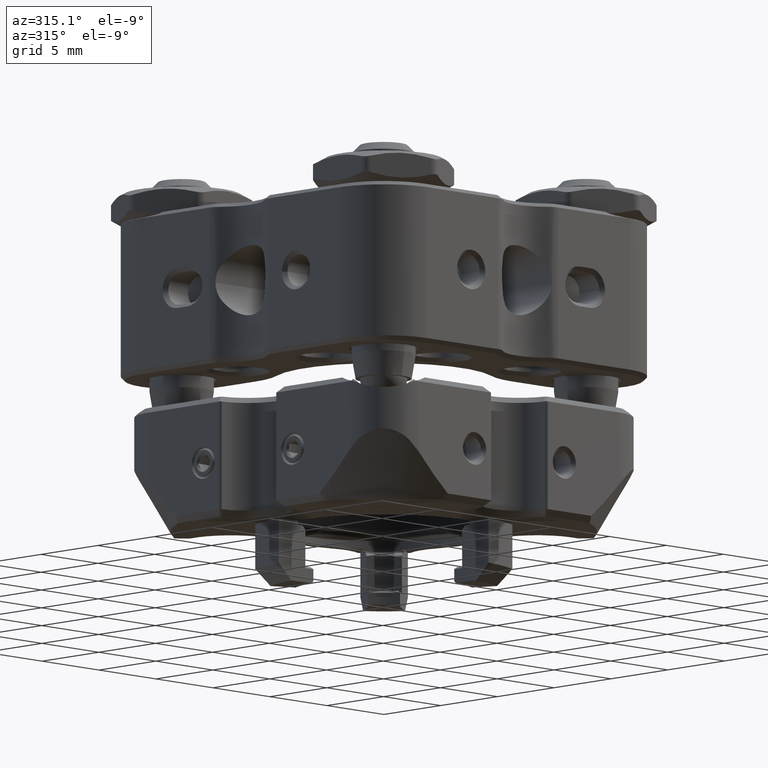
[diagram: clean part render]
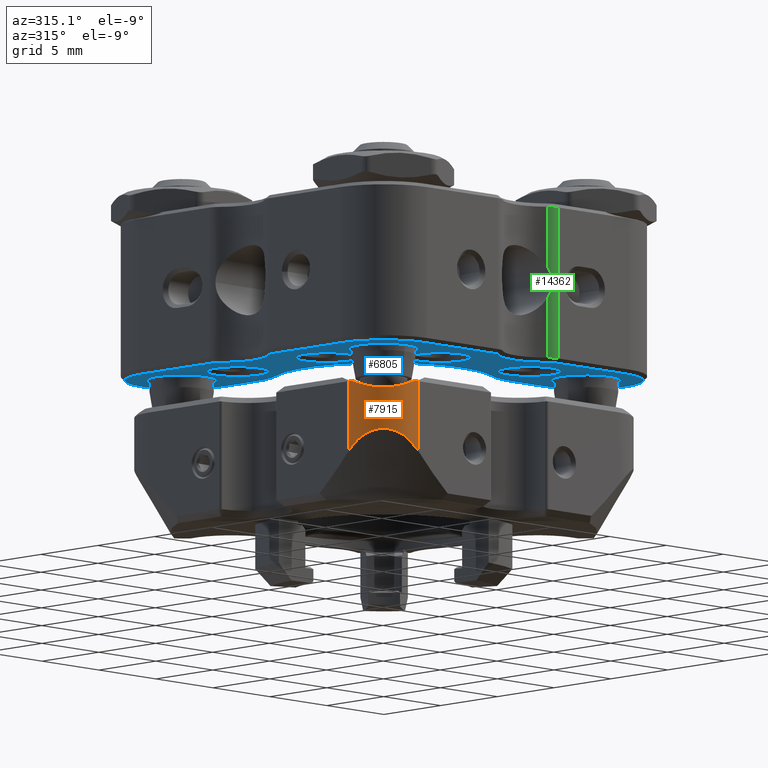
[diagram: same view with three faces highlighted in distinct colors, each labeled with its STEP entity id]
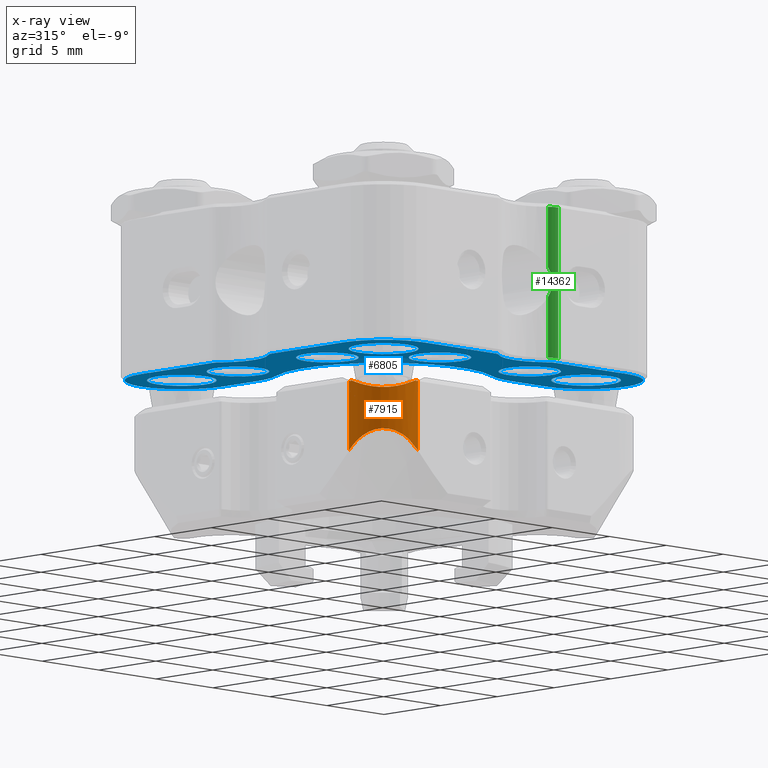
[diagram: x-ray of the same camera — body ghosted, the three highlighted faces saturated]
A machine part, auxiliary view with three faces highlighted in distinct colors.
The next image is the same camera in x-ray (body ghosted, the three faces saturated) — at least one of them is partly hidden behind the body in this view.
Their STEP definitions:

[orange] entity #7915 — the highlighted cylindrical surface (partial cylindrical patch) has radius 3.048 mm, axis along (0, -0, 1).
#81 = CARTESIAN_POINT ( 'NONE',  ( 8.099828173317630942, -9.995487385094644850, -5.026209211777071140 ) ) ;
#249 = CARTESIAN_POINT ( 'NONE',  ( 7.968549424003965598, -10.04401466382113561, -1.668764389073038146 ) ) ;
#293 = CYLINDRICAL_SURFACE ( 'NONE', #4287, 3.048000000000001375 ) ;
#489 = CARTESIAN_POINT ( 'NONE',  ( 10.15999999999999659, -7.435672145630305430, -1.248279250892957659 ) ) ;
#512 = CARTESIAN_POINT ( 'NONE',  ( 10.16000000000000192, -7.111999999999998323, 5.676900000000000723 ) ) ;
#555 = CARTESIAN_POINT ( 'NONE',  ( 8.911942566122489140, -9.574419869628968627, -2.140499340308680054 ) ) ;
#742 = CARTESIAN_POINT ( 'NONE',  ( 8.372875855493898456, -9.901946419905423014, -4.932668246587541994 ) ) ;
#939 = CARTESIAN_POINT ( 'NONE',  ( 10.16000000000000192, -7.111999999999998323, -5.295900000000001384 ) ) ;
#1297 = EDGE_CURVE ( 'NONE', #5315, #8537, #10091, .T. ) ;
#1472 = CARTESIAN_POINT ( 'NONE',  ( 7.785456005126948575, -10.08986922601767411, -1.530610798859725286 ) ) ;
#1955 = LINE ( 'NONE', #9432, #2853 ) ;
#2034 = CARTESIAN_POINT ( 'NONE',  ( 9.713356308748773316, -8.729075870306465035, -4.836075982068008372 ) ) ;
#2153 = CARTESIAN_POINT ( 'NONE',  ( 7.282881136124938593, -10.15640637669801727, -5.299493623301977152 ) ) ;
#2199 = CARTESIAN_POINT ( 'NONE',  ( 9.344364754940762907, -9.209268846927528784, -4.770404590740772832 ) ) ;
#2582 = CARTESIAN_POINT ( 'NONE',  ( 7.112000000000000099, -7.111999999999998323, 5.676900000000000723 ) ) ;
#2690 = CARTESIAN_POINT ( 'NONE',  ( 7.272232941495139436, -10.16000000000000192, -1.079202160661693721 ) ) ;
#2748 = DIRECTION ( 'NONE',  ( -0.000000000000000000, -0.000000000000000000, -1.000000000000000000 ) ) ;
#2825 = ORIENTED_EDGE ( 'NONE', *, *, #9987, .F. ) ;
#2853 = VECTOR ( 'NONE', #6848, 1000.000000000000000 ) ;
#2896 = CARTESIAN_POINT ( 'NONE',  ( 10.16000000000000192, -7.197478354937953959, -5.295900000000001384 ) ) ;
#2933 = CARTESIAN_POINT ( 'NONE',  ( 9.631546900848952930, -8.830906409094595233, -2.116894669760313707 ) ) ;
#3020 = CARTESIAN_POINT ( 'NONE',  ( 9.090885641512258530, -9.433059342950926407, -2.177586437462521118 ) ) ;
#3132 = CARTESIAN_POINT ( 'NONE',  ( 7.857539165240611467, -10.07849101101681910, -5.109212837698960286 ) ) ;
#3260 = CARTESIAN_POINT ( 'NONE',  ( 9.564978598131064658, -8.924829885912137328, -2.143901567788132123 ) ) ;
#3275 = CARTESIAN_POINT ( 'NONE',  ( 9.856985913071481420, -8.468391468657724630, -4.904513844321582106 ) ) ;
#3448 = EDGE_CURVE ( 'NONE', #14288, #5315, #1955, .T. ) ;
#3564 = VERTEX_POINT ( 'NONE', #81 ) ;
#3901 = ORIENTED_EDGE ( 'NONE', *, *, #1297, .T. ) ;
#4212 = CARTESIAN_POINT ( 'NONE',  ( 7.112000000000000099, -10.15999999999999837, -5.295899999999997831 ) ) ;
#4287 = AXIS2_PLACEMENT_3D ( 'NONE', #2582, #2748, #15005 ) ;
#4360 = CARTESIAN_POINT ( 'NONE',  ( 7.368057329692457635, -10.14922548453531270, -5.306674515464682607 ) ) ;
#4399 = CARTESIAN_POINT ( 'NONE',  ( 8.250671879450207413, -9.941090150049243235, -1.848059543088286460 ) ) ;
#4468 = CARTESIAN_POINT ( 'NONE',  ( 8.631375543011335694, -9.756646618841351426, -2.043230124569045625 ) ) ;
#4663 = B_SPLINE_CURVE_WITH_KNOTS ( 'NONE', 3,
 ( #4360, #9136, #3132, #5507 ),
 .UNSPECIFIED., .F., .F.,
 ( 4, 4 ),
 ( 0.0002761886612296812174, 0.001074490666728160088 ),
 .UNSPECIFIED. ) ;
#4983 = B_SPLINE_CURVE_WITH_KNOTS ( 'NONE', 3,
 ( #5154, #2690, #12604, #1472, #249, #4399, #14056, #11914, #4468, #11757, #555, #3020, #9097, #7973, #14213, #3260, #2933, #14369, #9178, #14141, #489, #12926 ),
 .UNSPECIFIED., .F., .F.,
 ( 4, 2, 2, 2, 2, 2, 2, 2, 2, 2, 4 ),
 ( 0.0003023768153346292182, 0.0009893881956517017705, 0.001676399575968774269, 0.002019905266127308349, 0.002363410956285842864, 0.002706916646444377378, 0.003050422336602911458, 0.003393928026761446407, 0.003737433716919980921, 0.004424445097237049082, 0.005798467857871190609 ),
 .UNSPECIFIED. ) ;
#5154 = CARTESIAN_POINT ( 'NONE',  ( 7.111999999999999211, -10.16000000000000014, -0.9134419340957943279 ) ) ;
#5315 = VERTEX_POINT ( 'NONE', #4212 ) ;
#5507 = CARTESIAN_POINT ( 'NONE',  ( 8.099828173317630942, -9.995487385094644850, -5.026209211777071140 ) ) ;
#5639 = EDGE_CURVE ( 'NONE', #8537, #3564, #4663, .T. ) ;
#5667 = EDGE_CURVE ( 'NONE', #14909, #9382, #5742, .T. ) ;
#5742 =( BOUNDED_CURVE ( )  B_SPLINE_CURVE ( 3, ( #14020, #6713, #2896, #6637 ),
 .UNSPECIFIED., .F., .T. ) 
 B_SPLINE_CURVE_WITH_KNOTS ( ( 4, 4 ),
 ( 3.057485214862957879, 3.141592653589793116 ),
 .UNSPECIFIED. ) 
 CURVE ( )  GEOMETRIC_REPRESENTATION_ITEM ( )  RATIONAL_B_SPLINE_CURVE ( ( 1.000000000000000000, 0.9994105817698464289, 0.9994105817698464289, 1.000000000000000000 ) ) 
 REPRESENTATION_ITEM ( '' )  );
#5758 = ORIENTED_EDGE ( 'NONE', *, *, #13574, .F. ) ;
#5836 = CARTESIAN_POINT ( 'NONE',  ( 7.112000000000000099, -10.15999999999999837, -5.295899999999997831 ) ) ;
#5915 = CARTESIAN_POINT ( 'NONE',  ( 7.197478354937983269, -10.15999999999999837, -5.295899999999996943 ) ) ;
#6637 = CARTESIAN_POINT ( 'NONE',  ( 10.16000000000000192, -7.111999999999998323, -5.295900000000001384 ) ) ;
#6705 = LINE ( 'NONE', #512, #7348 ) ;
#6713 = CARTESIAN_POINT ( 'NONE',  ( 10.15640637669802082, -7.282881136124884414, -5.299493623301981593 ) ) ;
#6848 = DIRECTION ( 'NONE',  ( -0.000000000000000000, -0.000000000000000000, -1.000000000000000000 ) ) ;
#7168 = CARTESIAN_POINT ( 'NONE',  ( 10.12560571199307802, -7.648223397152431602, -5.190218101284745700 ) ) ;
#7348 = VECTOR ( 'NONE', #15064, 1000.000000000000000 ) ;
#7579 = VERTEX_POINT ( 'NONE', #13662 ) ;
#7915 = ADVANCED_FACE ( 'NONE', ( #13302 ), #293, .T. ) ;
#7973 = CARTESIAN_POINT ( 'NONE',  ( 9.344698759503971885, -9.190237689979880997, -2.188417042059593420 ) ) ;
#8225 = CARTESIAN_POINT ( 'NONE',  ( 10.14922548453532336, -7.368057329692375923, -5.306674515464679054 ) ) ;
#8375 = CARTESIAN_POINT ( 'NONE',  ( 8.099828173317630942, -9.995487385094644850, -5.026209211777071140 ) ) ;
#8537 = VERTEX_POINT ( 'NONE', #9121 ) ;
#8697 = ORIENTED_EDGE ( 'NONE', *, *, #12934, .T. ) ;
#9097 = CARTESIAN_POINT ( 'NONE',  ( 9.178671611525626162, -9.355409034674140756, -2.187573424587574866 ) ) ;
#9121 = CARTESIAN_POINT ( 'NONE',  ( 7.368057329692457635, -10.14922548453531270, -5.306674515464682607 ) ) ;
#9136 = CARTESIAN_POINT ( 'NONE',  ( 7.614059716505599873, -10.12848592647942425, -5.204418892192074431 ) ) ;
#9178 = CARTESIAN_POINT ( 'NONE',  ( 9.902615250178556039, -8.354080883521392664, -1.913000516845026810 ) ) ;
#9382 = VERTEX_POINT ( 'NONE', #939 ) ;
#9432 = CARTESIAN_POINT ( 'NONE',  ( 7.112000000000000099, -10.15999999999999837, 5.676900000000000723 ) ) ;
#9512 = CARTESIAN_POINT ( 'NONE',  ( 8.635595039523620287, -9.769036561963192256, -4.858012989388826419 ) ) ;
#9789 = CARTESIAN_POINT ( 'NONE',  ( 7.111999999999999211, -10.16000000000000014, -0.9134419340957943279 ) ) ;
#9849 = CARTESIAN_POINT ( 'NONE',  ( 10.14922548453532336, -7.368057329692375923, -5.306674515464679054 ) ) ;
#9912 = ORIENTED_EDGE ( 'NONE', *, *, #5667, .T. ) ;
#9987 = EDGE_CURVE ( 'NONE', #7579, #9382, #6705, .T. ) ;
#10091 =( BOUNDED_CURVE ( )  B_SPLINE_CURVE ( 3, ( #5836, #5915, #2153, #13452 ),
 .UNSPECIFIED., .F., .T. ) 
 B_SPLINE_CURVE_WITH_KNOTS ( ( 4, 4 ),
 ( 3.141592653589793116, 3.225700092316654555 ),
 .UNSPECIFIED. ) 
 CURVE ( )  GEOMETRIC_REPRESENTATION_ITEM ( )  RATIONAL_B_SPLINE_CURVE ( ( 1.000000000000000000, 0.9994105817698459848, 0.9994105817698459848, 1.000000000000000000 ) ) 
 REPRESENTATION_ITEM ( '' )  );
#10799 = CARTESIAN_POINT ( 'NONE',  ( 9.126576196563393140, -9.419090783716654869, -4.775387663265036942 ) ) ;
#11757 = CARTESIAN_POINT ( 'NONE',  ( 8.819961950314375798, -9.638959389370612030, -2.113404242367718400 ) ) ;
#11914 = CARTESIAN_POINT ( 'NONE',  ( 8.535041885759151015, -9.809477128186500750, -2.000102378579530882 ) ) ;
#12604 = CARTESIAN_POINT ( 'NONE',  ( 7.438401798330821713, -10.14757407818538582, -1.236641613914369220 ) ) ;
#12906 = B_SPLINE_CURVE_WITH_KNOTS ( 'NONE', 3,
 ( #8375, #742, #9512, #10799, #2199, #2034, #3275, #13336, #7168, #8225 ),
 .UNSPECIFIED., .F., .F.,
 ( 4, 2, 2, 2, 4 ),
 ( 0.001074490666728160088, 0.001974137390317369078, 0.002873784113906577634, 0.003773430837495786623, 0.004673077561084995613 ),
 .UNSPECIFIED. ) ;
#12926 = CARTESIAN_POINT ( 'NONE',  ( 10.16000000000000192, -7.112000000000000099, -0.9134419340957991018 ) ) ;
#12934 = EDGE_CURVE ( 'NONE', #3564, #14909, #12906, .T. ) ;
#12955 = EDGE_LOOP ( 'NONE', ( #13548, #3901, #14583, #8697, #9912, #2825, #5758 ) ) ;
#13302 = FACE_OUTER_BOUND ( 'NONE', #12955, .T. ) ;
#13336 = CARTESIAN_POINT ( 'NONE',  ( 10.06383579511595983, -7.925271736801705380, -5.082805460722910063 ) ) ;
#13452 = CARTESIAN_POINT ( 'NONE',  ( 7.368057329692457635, -10.14922548453531270, -5.306674515464682607 ) ) ;
#13548 = ORIENTED_EDGE ( 'NONE', *, *, #3448, .T. ) ;
#13574 = EDGE_CURVE ( 'NONE', #14288, #7579, #4983, .T. ) ;
#13662 = CARTESIAN_POINT ( 'NONE',  ( 10.16000000000000192, -7.112000000000000099, -0.9134419340957991018 ) ) ;
#14020 = CARTESIAN_POINT ( 'NONE',  ( 10.14922548453532336, -7.368057329692375923, -5.306674515464679054 ) ) ;
#14056 = CARTESIAN_POINT ( 'NONE',  ( 8.345152454647228879, -9.901402460978289355, -1.902681227144757958 ) ) ;
#14141 = CARTESIAN_POINT ( 'NONE',  ( 10.11016825575627465, -7.791167647292671639, -1.557530402810652026 ) ) ;
#14213 = CARTESIAN_POINT ( 'NONE',  ( 9.421818082899594771, -9.104033288390366963, -2.179465825792783473 ) ) ;
#14288 = VERTEX_POINT ( 'NONE', #9789 ) ;
#14369 = CARTESIAN_POINT ( 'NONE',  ( 9.809965199756026877, -8.547651453562327362, -2.013145519260808314 ) ) ;
#14583 = ORIENTED_EDGE ( 'NONE', *, *, #5639, .T. ) ;
#14909 = VERTEX_POINT ( 'NONE', #9849 ) ;
#15005 = DIRECTION ( 'NONE',  ( -1.000000000000000000, 0.000000000000000000, 0.000000000000000000 ) ) ;
#15064 = DIRECTION ( 'NONE',  ( -0.000000000000000000, -0.000000000000000000, -1.000000000000000000 ) ) ;

[blue] entity #6805 — the highlighted planar face has unit normal (-0, 0, 1).
#12 = ORIENTED_EDGE ( 'NONE', *, *, #4058, .T. ) ;
#127 = DIRECTION ( 'NONE',  ( -1.000000000000000000, -0.000000000000000000, -0.000000000000000000 ) ) ;
#137 = DIRECTION ( 'NONE',  ( 0.000000000000000000, 0.000000000000000000, -1.000000000000000000 ) ) ;
#192 = AXIS2_PLACEMENT_3D ( 'NONE', #1333, #127, #5106 ) ;
#217 = FACE_BOUND ( 'NONE', #10407, .T. ) ;
#303 = ORIENTED_EDGE ( 'NONE', *, *, #2294, .T. ) ;
#318 = DIRECTION ( 'NONE',  ( 0.000000000000000000, 0.000000000000000000, -1.000000000000000000 ) ) ;
#374 = VERTEX_POINT ( 'NONE', #14173 ) ;
#396 = CARTESIAN_POINT ( 'NONE',  ( -5.000000000000000000, 3.851859888774471706E-31, -14.69999999999999929 ) ) ;
#408 = ORIENTED_EDGE ( 'NONE', *, *, #14187, .T. ) ;
#412 = EDGE_CURVE ( 'NONE', #11255, #11878, #15673, .T. ) ;
#426 = CIRCLE ( 'NONE', #1204, 4.749999999999995559 ) ;
#501 = VERTEX_POINT ( 'NONE', #12233 ) ;
#565 = EDGE_CURVE ( 'NONE', #8535, #8831, #2982, .T. ) ;
#592 = VERTEX_POINT ( 'NONE', #3507 ) ;
#598 = EDGE_CURVE ( 'NONE', #6458, #501, #9199, .T. ) ;
#607 = EDGE_CURVE ( 'NONE', #6715, #3165, #12026, .T. ) ;
#624 = DIRECTION ( 'NONE',  ( 0.000000000000000000, 0.000000000000000000, -1.000000000000000000 ) ) ;
#645 = DIRECTION ( 'NONE',  ( 0.000000000000000000, 0.000000000000000000, -1.000000000000000000 ) ) ;
#664 = EDGE_CURVE ( 'NONE', #9582, #374, #15423, .T. ) ;
#846 = DIRECTION ( 'NONE',  ( 0.000000000000000000, 0.000000000000000000, -1.000000000000000000 ) ) ;
#905 = VERTEX_POINT ( 'NONE', #13630 ) ;
#1186 = DIRECTION ( 'NONE',  ( -1.000000000000000000, -0.000000000000000000, -0.000000000000000000 ) ) ;
#1204 = AXIS2_PLACEMENT_3D ( 'NONE', #3499, #15823, #11919 ) ;
#1256 = CARTESIAN_POINT ( 'NONE',  ( -5.000000000000000000, -12.44999999999999929, 0.000000000000000000 ) ) ;
#1295 = AXIS2_PLACEMENT_3D ( 'NONE', #12863, #5246, #14159 ) ;
#1307 = VECTOR ( 'NONE', #7528, 1000.000000000000000 ) ;
#1333 = CARTESIAN_POINT ( 'NONE',  ( -5.000000000000000000, -8.890000000000002345, -8.889999999999998792 ) ) ;
#1348 = ORIENTED_EDGE ( 'NONE', *, *, #12528, .T. ) ;
#1432 = EDGE_CURVE ( 'NONE', #10679, #8616, #15826, .T. ) ;
#1447 = CIRCLE ( 'NONE', #2479, 2.175000000000003375 ) ;
#1493 = EDGE_CURVE ( 'NONE', #6563, #11728, #2819, .T. ) ;
#1601 = DIRECTION ( 'NONE',  ( 0.000000000000000000, 0.000000000000000000, -1.000000000000000000 ) ) ;
#1700 = ORIENTED_EDGE ( 'NONE', *, *, #3268, .T. ) ;
#1739 = VERTEX_POINT ( 'NONE', #9530 ) ;
#1820 = EDGE_CURVE ( 'NONE', #5460, #6715, #4665, .T. ) ;
#1855 = ORIENTED_EDGE ( 'NONE', *, *, #1432, .T. ) ;
#1903 = VERTEX_POINT ( 'NONE', #7260 ) ;
#1936 = ORIENTED_EDGE ( 'NONE', *, *, #12843, .T. ) ;
#1946 = EDGE_CURVE ( 'NONE', #11878, #11255, #15663, .T. ) ;
#2193 = AXIS2_PLACEMENT_3D ( 'NONE', #6532, #2553, #11311 ) ;
#2205 = VERTEX_POINT ( 'NONE', #9662 ) ;
#2294 = EDGE_CURVE ( 'NONE', #11728, #6507, #7304, .T. ) ;
#2362 = CARTESIAN_POINT ( 'NONE',  ( -5.000000000000000000, -10.08000000000000362, 5.880688735173794868 ) ) ;
#2381 = CIRCLE ( 'NONE', #3421, 3.559999999999997389 ) ;
#2445 = CARTESIAN_POINT ( 'NONE',  ( -5.000000000000000000, -8.890000000000002345, -11.06499999999999062 ) ) ;
#2479 = AXIS2_PLACEMENT_3D ( 'NONE', #4438, #15399, #5439 ) ;
#2553 = DIRECTION ( 'NONE',  ( -1.000000000000000000, -0.000000000000000000, -0.000000000000000000 ) ) ;
#2629 = EDGE_LOOP ( 'NONE', ( #5330, #3478 ) ) ;
#2643 = ORIENTED_EDGE ( 'NONE', *, *, #15265, .T. ) ;
#2656 = FACE_BOUND ( 'NONE', #5206, .T. ) ;
#2679 = CARTESIAN_POINT ( 'NONE',  ( -5.000000000000000000, -8.890000000000004121, 6.715000000000002522 ) ) ;
#2739 = EDGE_CURVE ( 'NONE', #9742, #9844, #9725, .T. ) ;
#2819 = LINE ( 'NONE', #1256, #1307 ) ;
#2840 = CARTESIAN_POINT ( 'NONE',  ( -5.000000000000000000, -14.69999999999999929, -3.264055692397959677E-15 ) ) ;
#2982 = CIRCLE ( 'NONE', #6088, 1.949999999999996847 ) ;
#3055 = ORIENTED_EDGE ( 'NONE', *, *, #8056, .T. ) ;
#3123 = VECTOR ( 'NONE', #7634, 1000.000000000000000 ) ;
#3165 = VERTEX_POINT ( 'NONE', #4256 ) ;
#3191 = DIRECTION ( 'NONE',  ( 0.000000000000000000, 0.000000000000000000, -1.000000000000000000 ) ) ;
#3244 = CARTESIAN_POINT ( 'NONE',  ( -5.000000000000000000, -12.44999999999999929, 2.645751311064589828 ) ) ;
#3268 = EDGE_CURVE ( 'NONE', #905, #11844, #7798, .T. ) ;
#3289 = CARTESIAN_POINT ( 'NONE',  ( -5.000000000000000000, -8.889999999999998792, 5.884999999999995346 ) ) ;
#3334 = CARTESIAN_POINT ( 'NONE',  ( -5.000000000000000000, 3.851859888774471706E-31, -11.44999999999999574 ) ) ;
#3375 = CIRCLE ( 'NONE', #5478, 2.174999999999992717 ) ;
#3421 = AXIS2_PLACEMENT_3D ( 'NONE', #14304, #7012, #3191 ) ;
#3478 = ORIENTED_EDGE ( 'NONE', *, *, #13053, .T. ) ;
#3499 = CARTESIAN_POINT ( 'NONE',  ( -5.000000000000000000, 5.880688735173794868, -10.08000000000000007 ) ) ;
#3507 = CARTESIAN_POINT ( 'NONE',  ( -5.000000000000000000, -8.890000000000002345, -12.44999999999999574 ) ) ;
#3525 = CIRCLE ( 'NONE', #4560, 6.920000000000003482 ) ;
#3545 = VERTEX_POINT ( 'NONE', #12343 ) ;
#3698 = ORIENTED_EDGE ( 'NONE', *, *, #664, .T. ) ;
#3744 = EDGE_LOOP ( 'NONE', ( #10104, #14289 ) ) ;
#3746 = DIRECTION ( 'NONE',  ( -1.000000000000000000, -0.000000000000000000, -0.000000000000000000 ) ) ;
#3762 = VECTOR ( 'NONE', #5028, 1000.000000000000000 ) ;
#3775 = CARTESIAN_POINT ( 'NONE',  ( -5.000000000000000000, -8.889999999999998792, 3.934999999999998277 ) ) ;
#3830 = DIRECTION ( 'NONE',  ( 1.000000000000000000, 0.000000000000000000, 0.000000000000000000 ) ) ;
#3842 = CARTESIAN_POINT ( 'NONE',  ( -5.000000000000000000, 5.880688735173795756, -5.330000000000003624 ) ) ;
#3927 = EDGE_CURVE ( 'NONE', #13411, #15124, #3375, .T. ) ;
#3994 = VERTEX_POINT ( 'NONE', #14768 ) ;
#4058 = EDGE_CURVE ( 'NONE', #11844, #905, #9500, .T. ) ;
#4068 = AXIS2_PLACEMENT_3D ( 'NONE', #10925, #4791, #9727 ) ;
#4136 = CARTESIAN_POINT ( 'NONE',  ( -5.000000000000000000, -8.890000000000002345, 12.44999999999999574 ) ) ;
#4137 = DIRECTION ( 'NONE',  ( -1.000000000000000000, -0.000000000000000000, -0.000000000000000000 ) ) ;
#4170 = DIRECTION ( 'NONE',  ( 0.000000000000000000, 1.000000000000000000, -1.035325214890563892E-16 ) ) ;
#4211 = CARTESIAN_POINT ( 'NONE',  ( -5.000000000000000000, 2.149672940239979901, -12.26249999999999396 ) ) ;
#4228 = DIRECTION ( 'NONE',  ( -1.000000000000000000, -0.000000000000000000, -0.000000000000000000 ) ) ;
#4256 = CARTESIAN_POINT ( 'NONE',  ( -5.000000000000000000, -12.26249999999999929, -2.149672940239988339 ) ) ;
#4274 = DIRECTION ( 'NONE',  ( 1.000000000000000000, 0.000000000000000000, 0.000000000000000000 ) ) ;
#4315 = CARTESIAN_POINT ( 'NONE',  ( -5.000000000000000000, 2.645751311064587163, -11.69999999999999751 ) ) ;
#4438 = CARTESIAN_POINT ( 'NONE',  ( -5.000000000000000000, 8.889999999999995239, -8.889999999999995239 ) ) ;
#4560 = AXIS2_PLACEMENT_3D ( 'NONE', #4840, #10822, #846 ) ;
#4565 = AXIS2_PLACEMENT_3D ( 'NONE', #6573, #10304, #11591 ) ;
#4593 = VERTEX_POINT ( 'NONE', #12464 ) ;
#4613 = DIRECTION ( 'NONE',  ( 1.000000000000000000, 0.000000000000000000, 0.000000000000000000 ) ) ;
#4624 = CIRCLE ( 'NONE', #10071, 3.250000000000003109 ) ;
#4632 = CARTESIAN_POINT ( 'NONE',  ( -5.000000000000000000, -8.890000000000002345, -8.889999999999998792 ) ) ;
#4660 = EDGE_LOOP ( 'NONE', ( #408, #8812, #12542, #1348, #1936, #8186, #8823, #12838, #6681, #9389, #303, #9869, #14924, #5546, #11251, #8348, #10957, #2643, #8797, #10256, #8671 ) ) ;
#4665 = LINE ( 'NONE', #9603, #11162 ) ;
#4715 = DIRECTION ( 'NONE',  ( 1.000000000000000000, 0.000000000000000000, 0.000000000000000000 ) ) ;
#4791 = DIRECTION ( 'NONE',  ( 1.000000000000000000, 0.000000000000000000, 0.000000000000000000 ) ) ;
#4840 = CARTESIAN_POINT ( 'NONE',  ( -5.000000000000000000, -3.469446951953614189E-15, -1.734723475976807094E-15 ) ) ;
#4864 = CIRCLE ( 'NONE', #13938, 0.7499999999999954481 ) ;
#4944 = EDGE_CURVE ( 'NONE', #15833, #6563, #8958, .T. ) ;
#5028 = DIRECTION ( 'NONE',  ( 0.000000000000000000, -3.105975644671689334E-16, -1.000000000000000000 ) ) ;
#5088 = DIRECTION ( 'NONE',  ( 0.000000000000000000, 0.000000000000000000, -1.000000000000000000 ) ) ;
#5106 = DIRECTION ( 'NONE',  ( 0.000000000000000000, 0.000000000000000000, -1.000000000000000000 ) ) ;
#5191 = CARTESIAN_POINT ( 'NONE',  ( -5.000000000000000000, -8.890000000000004121, 8.889999999999998792 ) ) ;
#5206 = EDGE_LOOP ( 'NONE', ( #3698, #3055 ) ) ;
#5246 = DIRECTION ( 'NONE',  ( 1.000000000000000000, 0.000000000000000000, 0.000000000000000000 ) ) ;
#5278 = FACE_OUTER_BOUND ( 'NONE', #4660, .T. ) ;
#5298 = EDGE_CURVE ( 'NONE', #8210, #3545, #15935, .T. ) ;
#5307 = ORIENTED_EDGE ( 'NONE', *, *, #598, .T. ) ;
#5330 = ORIENTED_EDGE ( 'NONE', *, *, #565, .T. ) ;
#5336 = CARTESIAN_POINT ( 'NONE',  ( -5.000000000000000000, -5.518283395366708684E-16, -5.330000000000002736 ) ) ;
#5340 = CARTESIAN_POINT ( 'NONE',  ( -5.000000000000000000, -8.890000000000004121, 11.06499999999999417 ) ) ;
#5439 = DIRECTION ( 'NONE',  ( 0.000000000000000000, 0.000000000000000000, -1.000000000000000000 ) ) ;
#5460 = VERTEX_POINT ( 'NONE', #11070 ) ;
#5478 = AXIS2_PLACEMENT_3D ( 'NONE', #4632, #6829, #645 ) ;
#5546 = ORIENTED_EDGE ( 'NONE', *, *, #15420, .T. ) ;
#5661 = CARTESIAN_POINT ( 'NONE',  ( -5.000000000000000000, -8.889999999999995239, -1.985000000000004983 ) ) ;
#5839 = AXIS2_PLACEMENT_3D ( 'NONE', #13413, #7239, #8693 ) ;
#5941 = DIRECTION ( 'NONE',  ( -1.000000000000000000, -0.000000000000000000, -0.000000000000000000 ) ) ;
#6013 = CARTESIAN_POINT ( 'NONE',  ( -5.000000000000000000, -8.890000000000004121, 8.889999999999998792 ) ) ;
#6024 = DIRECTION ( 'NONE',  ( 0.000000000000000000, 0.000000000000000000, -1.000000000000000000 ) ) ;
#6088 = AXIS2_PLACEMENT_3D ( 'NONE', #9900, #4715, #14617 ) ;
#6148 = VECTOR ( 'NONE', #9384, 1000.000000000000000 ) ;
#6162 = DIRECTION ( 'NONE',  ( 0.000000000000000000, -9.745637505487688394E-16, -1.000000000000000000 ) ) ;
#6194 = AXIS2_PLACEMENT_3D ( 'NONE', #9475, #4613, #15963 ) ;
#6237 = FACE_BOUND ( 'NONE', #8308, .T. ) ;
#6264 = EDGE_CURVE ( 'NONE', #6507, #4593, #7154, .T. ) ;
#6283 = CIRCLE ( 'NONE', #8352, 4.749999999999996447 ) ;
#6298 = CARTESIAN_POINT ( 'NONE',  ( -5.000000000000000000, 2.645751311064587163, -12.44999999999999396 ) ) ;
#6299 = VERTEX_POINT ( 'NONE', #3334 ) ;
#6315 = FACE_BOUND ( 'NONE', #2629, .T. ) ;
#6359 = DIRECTION ( 'NONE',  ( 0.000000000000000000, -2.556434596176349352E-15, -1.000000000000000000 ) ) ;
#6458 = VERTEX_POINT ( 'NONE', #11738 ) ;
#6476 = EDGE_CURVE ( 'NONE', #6299, #8210, #13901, .T. ) ;
#6482 = DIRECTION ( 'NONE',  ( 1.000000000000000000, 0.000000000000000000, 0.000000000000000000 ) ) ;
#6507 = VERTEX_POINT ( 'NONE', #4136 ) ;
#6532 = CARTESIAN_POINT ( 'NONE',  ( -5.000000000000000000, -11.70000000000000284, 2.645751311064589828 ) ) ;
#6557 = LINE ( 'NONE', #12653, #3762 ) ;
#6561 = VERTEX_POINT ( 'NONE', #4211 ) ;
#6563 = VERTEX_POINT ( 'NONE', #3244 ) ;
#6573 = CARTESIAN_POINT ( 'NONE',  ( -5.000000000000000000, -8.890000000000002345, -8.889999999999998792 ) ) ;
#6581 = CIRCLE ( 'NONE', #8395, 3.559999999999997389 ) ;
#6607 = EDGE_CURVE ( 'NONE', #15124, #13411, #11553, .T. ) ;
#6681 = ORIENTED_EDGE ( 'NONE', *, *, #4944, .T. ) ;
#6715 = VERTEX_POINT ( 'NONE', #14755 ) ;
#6726 = LINE ( 'NONE', #14114, #6148 ) ;
#6738 = DIRECTION ( 'NONE',  ( 1.000000000000000000, 0.000000000000000000, 0.000000000000000000 ) ) ;
#6793 = EDGE_LOOP ( 'NONE', ( #8868, #1855 ) ) ;
#6794 = CARTESIAN_POINT ( 'NONE',  ( -5.000000000000000000, 3.935000000000000053, -8.889999999999997016 ) ) ;
#6805 = ADVANCED_FACE ( 'NONE', ( #15004, #6315, #6237, #217, #9874, #7537, #2656, #5278 ), #7368, .F. ) ;
#6829 = DIRECTION ( 'NONE',  ( 1.000000000000000000, 0.000000000000000000, 0.000000000000000000 ) ) ;
#6837 = EDGE_CURVE ( 'NONE', #2205, #9742, #6581, .T. ) ;
#7012 = DIRECTION ( 'NONE',  ( -1.000000000000000000, -0.000000000000000000, -0.000000000000000000 ) ) ;
#7022 = AXIS2_PLACEMENT_3D ( 'NONE', #5191, #11150, #10276 ) ;
#7154 = CIRCLE ( 'NONE', #9999, 3.559999999999996501 ) ;
#7208 = CARTESIAN_POINT ( 'NONE',  ( -5.000000000000000000, -8.890000000000004121, 8.889999999999998792 ) ) ;
#7239 = DIRECTION ( 'NONE',  ( 1.000000000000000000, 0.000000000000000000, 0.000000000000000000 ) ) ;
#7260 = CARTESIAN_POINT ( 'NONE',  ( -5.000000000000000000, 3.487092206289860385, -5.977172236503860425 ) ) ;
#7304 = CIRCLE ( 'NONE', #7839, 3.559999999999997389 ) ;
#7368 = PLANE ( 'NONE',  #7635 ) ;
#7463 = VERTEX_POINT ( 'NONE', #3842 ) ;
#7528 = DIRECTION ( 'NONE',  ( 0.000000000000000000, -0.000000000000000000, 1.000000000000000000 ) ) ;
#7536 = CARTESIAN_POINT ( 'NONE',  ( -5.000000000000000000, -12.26249999999999929, 2.149672940239980790 ) ) ;
#7537 = FACE_BOUND ( 'NONE', #6793, .T. ) ;
#7634 = DIRECTION ( 'NONE',  ( 0.000000000000000000, -1.000000000000000000, -1.365923996832131609E-16 ) ) ;
#7635 = AXIS2_PLACEMENT_3D ( 'NONE', #10202, #6482, #137 ) ;
#7656 = ORIENTED_EDGE ( 'NONE', *, *, #8204, .T. ) ;
#7798 = CIRCLE ( 'NONE', #1295, 1.949999999999996847 ) ;
#7810 = DIRECTION ( 'NONE',  ( 0.000000000000000000, 0.000000000000000000, -1.000000000000000000 ) ) ;
#7839 = AXIS2_PLACEMENT_3D ( 'NONE', #16004, #15109, #7810 ) ;
#7859 = DIRECTION ( 'NONE',  ( 0.000000000000000000, 0.000000000000000000, -1.000000000000000000 ) ) ;
#7998 = EDGE_CURVE ( 'NONE', #4593, #1739, #6557, .T. ) ;
#8056 = EDGE_CURVE ( 'NONE', #374, #9582, #1447, .T. ) ;
#8186 = ORIENTED_EDGE ( 'NONE', *, *, #1820, .T. ) ;
#8204 = EDGE_CURVE ( 'NONE', #501, #6458, #8706, .T. ) ;
#8210 = VERTEX_POINT ( 'NONE', #15788 ) ;
#8222 = CARTESIAN_POINT ( 'NONE',  ( -5.000000000000000000, -8.889999999999998792, 3.934999999999998277 ) ) ;
#8234 = EDGE_CURVE ( 'NONE', #14352, #1903, #3525, .T. ) ;
#8308 = EDGE_LOOP ( 'NONE', ( #1700, #12 ) ) ;
#8348 = ORIENTED_EDGE ( 'NONE', *, *, #9102, .T. ) ;
#8352 = AXIS2_PLACEMENT_3D ( 'NONE', #2362, #8865, #6359 ) ;
#8395 = AXIS2_PLACEMENT_3D ( 'NONE', #13532, #1186, #6162 ) ;
#8535 = VERTEX_POINT ( 'NONE', #5661 ) ;
#8616 = VERTEX_POINT ( 'NONE', #5340 ) ;
#8665 = AXIS2_PLACEMENT_3D ( 'NONE', #3775, #13751, #5088 ) ;
#8671 = ORIENTED_EDGE ( 'NONE', *, *, #13173, .T. ) ;
#8675 = AXIS2_PLACEMENT_3D ( 'NONE', #8222, #4274, #12004 ) ;
#8693 = DIRECTION ( 'NONE',  ( 0.000000000000000000, 0.000000000000000000, -1.000000000000000000 ) ) ;
#8706 = CIRCLE ( 'NONE', #14157, 1.949999999999996847 ) ;
#8797 = ORIENTED_EDGE ( 'NONE', *, *, #6837, .T. ) ;
#8812 = ORIENTED_EDGE ( 'NONE', *, *, #6476, .T. ) ;
#8823 = ORIENTED_EDGE ( 'NONE', *, *, #607, .T. ) ;
#8831 = VERTEX_POINT ( 'NONE', #11123 ) ;
#8865 = DIRECTION ( 'NONE',  ( -1.000000000000000000, -0.000000000000000000, -0.000000000000000000 ) ) ;
#8868 = ORIENTED_EDGE ( 'NONE', *, *, #9408, .T. ) ;
#8949 = AXIS2_PLACEMENT_3D ( 'NONE', #11592, #4137, #11349 ) ;
#8958 = CIRCLE ( 'NONE', #2193, 0.7499999999999972244 ) ;
#9090 = CARTESIAN_POINT ( 'NONE',  ( -5.000000000000000000, 8.889999999999995239, -8.889999999999995239 ) ) ;
#9102 = EDGE_CURVE ( 'NONE', #1903, #7463, #426, .T. ) ;
#9174 = DIRECTION ( 'NONE',  ( 0.000000000000000000, 0.000000000000000000, -1.000000000000000000 ) ) ;
#9199 = CIRCLE ( 'NONE', #5839, 1.949999999999996847 ) ;
#9204 = CARTESIAN_POINT ( 'NONE',  ( -5.000000000000000000, -8.890000000000002345, -6.715000000000006075 ) ) ;
#9284 = LINE ( 'NONE', #5336, #10540 ) ;
#9384 = DIRECTION ( 'NONE',  ( 0.000000000000000000, -1.000000000000000000, -1.365923996832131609E-16 ) ) ;
#9389 = ORIENTED_EDGE ( 'NONE', *, *, #1493, .T. ) ;
#9408 = EDGE_CURVE ( 'NONE', #8616, #10679, #14089, .T. ) ;
#9475 = CARTESIAN_POINT ( 'NONE',  ( -5.000000000000000000, 3.851859888774471706E-31, -14.69999999999999929 ) ) ;
#9500 = CIRCLE ( 'NONE', #4068, 1.949999999999996847 ) ;
#9530 = CARTESIAN_POINT ( 'NONE',  ( -5.000000000000000000, -5.330000000000007176, 5.880688735173793091 ) ) ;
#9582 = VERTEX_POINT ( 'NONE', #10896 ) ;
#9603 = CARTESIAN_POINT ( 'NONE',  ( -5.000000000000000000, -12.44999999999999929, 0.000000000000000000 ) ) ;
#9662 = CARTESIAN_POINT ( 'NONE',  ( -5.000000000000000000, 12.44999999999999218, -8.890000000000002345 ) ) ;
#9725 = LINE ( 'NONE', #14685, #3123 ) ;
#9727 = DIRECTION ( 'NONE',  ( 0.000000000000000000, 0.000000000000000000, -1.000000000000000000 ) ) ;
#9742 = VERTEX_POINT ( 'NONE', #13686 ) ;
#9844 = VERTEX_POINT ( 'NONE', #6298 ) ;
#9869 = ORIENTED_EDGE ( 'NONE', *, *, #6264, .T. ) ;
#9874 = FACE_BOUND ( 'NONE', #10909, .T. ) ;
#9900 = CARTESIAN_POINT ( 'NONE',  ( -5.000000000000000000, -8.889999999999995239, -3.935000000000001830 ) ) ;
#9999 = AXIS2_PLACEMENT_3D ( 'NONE', #6013, #5941, #13242 ) ;
#10071 = AXIS2_PLACEMENT_3D ( 'NONE', #2840, #15018, #1601 ) ;
#10104 = ORIENTED_EDGE ( 'NONE', *, *, #412, .T. ) ;
#10197 = CARTESIAN_POINT ( 'NONE',  ( -5.000000000000000000, -5.977172236503863090, 3.487092206289861274 ) ) ;
#10202 = CARTESIAN_POINT ( 'NONE',  ( -5.000000000000000000, 0.000000000000000000, 0.000000000000000000 ) ) ;
#10234 = DIRECTION ( 'NONE',  ( 1.000000000000000000, 0.000000000000000000, 0.000000000000000000 ) ) ;
#10256 = ORIENTED_EDGE ( 'NONE', *, *, #2739, .T. ) ;
#10276 = DIRECTION ( 'NONE',  ( 0.000000000000000000, 0.000000000000000000, -1.000000000000000000 ) ) ;
#10301 = CIRCLE ( 'NONE', #14711, 1.949999999999996847 ) ;
#10304 = DIRECTION ( 'NONE',  ( 1.000000000000000000, 0.000000000000000000, 0.000000000000000000 ) ) ;
#10407 = EDGE_LOOP ( 'NONE', ( #7656, #5307 ) ) ;
#10540 = VECTOR ( 'NONE', #4170, 1000.000000000000000 ) ;
#10679 = VERTEX_POINT ( 'NONE', #2679 ) ;
#10822 = DIRECTION ( 'NONE',  ( 1.000000000000000000, 0.000000000000000000, 0.000000000000000000 ) ) ;
#10896 = CARTESIAN_POINT ( 'NONE',  ( -5.000000000000000000, 8.889999999999995239, -6.714999999999991864 ) ) ;
#10909 = EDGE_LOOP ( 'NONE', ( #14139, #13936 ) ) ;
#10925 = CARTESIAN_POINT ( 'NONE',  ( -5.000000000000000000, -3.935000000000000053, -8.889999999999997016 ) ) ;
#10938 = CARTESIAN_POINT ( 'NONE',  ( -5.000000000000000000, -3.935000000000000053, -10.83999999999999453 ) ) ;
#10957 = ORIENTED_EDGE ( 'NONE', *, *, #15163, .T. ) ;
#11070 = CARTESIAN_POINT ( 'NONE',  ( -5.000000000000000000, -12.44999999999999929, -8.889999999999998792 ) ) ;
#11123 = CARTESIAN_POINT ( 'NONE',  ( -5.000000000000000000, -8.889999999999995239, -5.884999999999998899 ) ) ;
#11150 = DIRECTION ( 'NONE',  ( 1.000000000000000000, 0.000000000000000000, 0.000000000000000000 ) ) ;
#11162 = VECTOR ( 'NONE', #15854, 1000.000000000000000 ) ;
#11251 = ORIENTED_EDGE ( 'NONE', *, *, #8234, .T. ) ;
#11255 = VERTEX_POINT ( 'NONE', #3289 ) ;
#11311 = DIRECTION ( 'NONE',  ( 0.000000000000000000, -2.312964634635751339E-15, -1.000000000000000000 ) ) ;
#11349 = DIRECTION ( 'NONE',  ( 0.000000000000000000, 1.445602896647344715E-14, -1.000000000000000000 ) ) ;
#11553 = CIRCLE ( 'NONE', #4565, 2.174999999999992717 ) ;
#11591 = DIRECTION ( 'NONE',  ( 0.000000000000000000, 0.000000000000000000, -1.000000000000000000 ) ) ;
#11592 = CARTESIAN_POINT ( 'NONE',  ( -5.000000000000000000, -2.645751311064588052, -11.69999999999999751 ) ) ;
#11728 = VERTEX_POINT ( 'NONE', #15911 ) ;
#11738 = CARTESIAN_POINT ( 'NONE',  ( -5.000000000000000000, 3.935000000000000053, -10.83999999999999453 ) ) ;
#11844 = VERTEX_POINT ( 'NONE', #10938 ) ;
#11878 = VERTEX_POINT ( 'NONE', #15104 ) ;
#11919 = DIRECTION ( 'NONE',  ( 0.000000000000000000, 0.000000000000000000, -1.000000000000000000 ) ) ;
#11968 = DIRECTION ( 'NONE',  ( 1.000000000000000000, 0.000000000000000000, 0.000000000000000000 ) ) ;
#12004 = DIRECTION ( 'NONE',  ( 0.000000000000000000, 0.000000000000000000, -1.000000000000000000 ) ) ;
#12026 = CIRCLE ( 'NONE', #14901, 0.7499999999999963363 ) ;
#12159 = CARTESIAN_POINT ( 'NONE',  ( -5.000000000000000000, -11.70000000000000284, -2.645751311064596933 ) ) ;
#12233 = CARTESIAN_POINT ( 'NONE',  ( -5.000000000000000000, 3.935000000000000053, -6.940000000000000391 ) ) ;
#12343 = CARTESIAN_POINT ( 'NONE',  ( -5.000000000000000000, -2.645751311064588496, -12.44999999999999574 ) ) ;
#12464 = CARTESIAN_POINT ( 'NONE',  ( -5.000000000000000000, -5.330000000000006288, 8.889999999999997016 ) ) ;
#12528 = EDGE_CURVE ( 'NONE', #3545, #592, #6726, .T. ) ;
#12542 = ORIENTED_EDGE ( 'NONE', *, *, #5298, .T. ) ;
#12653 = CARTESIAN_POINT ( 'NONE',  ( -5.000000000000000000, -5.330000000000008953, 1.655485018610013394E-15 ) ) ;
#12838 = ORIENTED_EDGE ( 'NONE', *, *, #13888, .T. ) ;
#12843 = EDGE_CURVE ( 'NONE', #592, #5460, #13161, .T. ) ;
#12863 = CARTESIAN_POINT ( 'NONE',  ( -5.000000000000000000, -3.935000000000000053, -8.889999999999997016 ) ) ;
#13053 = EDGE_CURVE ( 'NONE', #8831, #8535, #10301, .T. ) ;
#13161 = CIRCLE ( 'NONE', #192, 3.559999999999997389 ) ;
#13173 = EDGE_CURVE ( 'NONE', #9844, #6561, #4864, .T. ) ;
#13221 = DIRECTION ( 'NONE',  ( 0.000000000000000000, 0.000000000000000000, -1.000000000000000000 ) ) ;
#13242 = DIRECTION ( 'NONE',  ( 0.000000000000000000, 9.745637505487690366E-16, -1.000000000000000000 ) ) ;
#13309 = AXIS2_PLACEMENT_3D ( 'NONE', #7208, #11968, #13221 ) ;
#13411 = VERTEX_POINT ( 'NONE', #2445 ) ;
#13413 = CARTESIAN_POINT ( 'NONE',  ( -5.000000000000000000, 3.935000000000000053, -8.889999999999997016 ) ) ;
#13532 = CARTESIAN_POINT ( 'NONE',  ( -5.000000000000000000, 8.889999999999995239, -8.889999999999995239 ) ) ;
#13630 = CARTESIAN_POINT ( 'NONE',  ( -5.000000000000000000, -3.935000000000000053, -6.940000000000000391 ) ) ;
#13645 = DIRECTION ( 'NONE',  ( 0.000000000000000000, 0.000000000000000000, -1.000000000000000000 ) ) ;
#13686 = CARTESIAN_POINT ( 'NONE',  ( -5.000000000000000000, 8.889999999999995239, -12.44999999999999218 ) ) ;
#13751 = DIRECTION ( 'NONE',  ( 1.000000000000000000, 0.000000000000000000, 0.000000000000000000 ) ) ;
#13888 = EDGE_CURVE ( 'NONE', #3165, #15833, #4624, .T. ) ;
#13901 = CIRCLE ( 'NONE', #15449, 3.250000000000004441 ) ;
#13936 = ORIENTED_EDGE ( 'NONE', *, *, #3927, .T. ) ;
#13938 = AXIS2_PLACEMENT_3D ( 'NONE', #4315, #4228, #9174 ) ;
#14089 = CIRCLE ( 'NONE', #13309, 2.174999999999996270 ) ;
#14114 = CARTESIAN_POINT ( 'NONE',  ( -5.000000000000000000, 1.700575376056003089E-15, -12.44999999999999396 ) ) ;
#14139 = ORIENTED_EDGE ( 'NONE', *, *, #6607, .T. ) ;
#14157 = AXIS2_PLACEMENT_3D ( 'NONE', #6794, #15246, #7859 ) ;
#14159 = DIRECTION ( 'NONE',  ( 0.000000000000000000, 0.000000000000000000, -1.000000000000000000 ) ) ;
#14173 = CARTESIAN_POINT ( 'NONE',  ( -5.000000000000000000, 8.889999999999995239, -11.06499999999999773 ) ) ;
#14187 = EDGE_CURVE ( 'NONE', #6561, #6299, #15774, .T. ) ;
#14289 = ORIENTED_EDGE ( 'NONE', *, *, #1946, .T. ) ;
#14304 = CARTESIAN_POINT ( 'NONE',  ( -5.000000000000000000, 8.889999999999995239, -8.890000000000002345 ) ) ;
#14352 = VERTEX_POINT ( 'NONE', #10197 ) ;
#14617 = DIRECTION ( 'NONE',  ( 0.000000000000000000, 0.000000000000000000, -1.000000000000000000 ) ) ;
#14639 = AXIS2_PLACEMENT_3D ( 'NONE', #9090, #10234, #318 ) ;
#14685 = CARTESIAN_POINT ( 'NONE',  ( -5.000000000000000000, 1.700575376056003089E-15, -12.44999999999999396 ) ) ;
#14711 = AXIS2_PLACEMENT_3D ( 'NONE', #14950, #3830, #6024 ) ;
#14755 = CARTESIAN_POINT ( 'NONE',  ( -5.000000000000000000, -12.44999999999999929, -2.645751311064596933 ) ) ;
#14768 = CARTESIAN_POINT ( 'NONE',  ( -5.000000000000000000, 8.889999999999995239, -5.330000000000003624 ) ) ;
#14901 = AXIS2_PLACEMENT_3D ( 'NONE', #12159, #3746, #13645 ) ;
#14924 = ORIENTED_EDGE ( 'NONE', *, *, #7998, .T. ) ;
#14950 = CARTESIAN_POINT ( 'NONE',  ( -5.000000000000000000, -8.889999999999995239, -3.935000000000001830 ) ) ;
#15004 = FACE_BOUND ( 'NONE', #3744, .T. ) ;
#15018 = DIRECTION ( 'NONE',  ( 1.000000000000000000, 0.000000000000000000, 0.000000000000000000 ) ) ;
#15104 = CARTESIAN_POINT ( 'NONE',  ( -5.000000000000000000, -8.889999999999998792, 1.985000000000001430 ) ) ;
#15109 = DIRECTION ( 'NONE',  ( -1.000000000000000000, -0.000000000000000000, -0.000000000000000000 ) ) ;
#15124 = VERTEX_POINT ( 'NONE', #9204 ) ;
#15163 = EDGE_CURVE ( 'NONE', #7463, #3994, #9284, .T. ) ;
#15246 = DIRECTION ( 'NONE',  ( 1.000000000000000000, 0.000000000000000000, 0.000000000000000000 ) ) ;
#15265 = EDGE_CURVE ( 'NONE', #3994, #2205, #2381, .T. ) ;
#15399 = DIRECTION ( 'NONE',  ( 1.000000000000000000, 0.000000000000000000, 0.000000000000000000 ) ) ;
#15420 = EDGE_CURVE ( 'NONE', #1739, #14352, #6283, .T. ) ;
#15423 = CIRCLE ( 'NONE', #14639, 2.175000000000003375 ) ;
#15449 = AXIS2_PLACEMENT_3D ( 'NONE', #396, #6738, #624 ) ;
#15663 = CIRCLE ( 'NONE', #8665, 1.949999999999996847 ) ;
#15673 = CIRCLE ( 'NONE', #8675, 1.949999999999996847 ) ;
#15774 = CIRCLE ( 'NONE', #6194, 3.250000000000004441 ) ;
#15788 = CARTESIAN_POINT ( 'NONE',  ( -5.000000000000000000, -2.149672940239980345, -12.26249999999999396 ) ) ;
#15823 = DIRECTION ( 'NONE',  ( -1.000000000000000000, -0.000000000000000000, -0.000000000000000000 ) ) ;
#15826 = CIRCLE ( 'NONE', #7022, 2.174999999999996270 ) ;
#15833 = VERTEX_POINT ( 'NONE', #7536 ) ;
#15854 = DIRECTION ( 'NONE',  ( 0.000000000000000000, -0.000000000000000000, 1.000000000000000000 ) ) ;
#15911 = CARTESIAN_POINT ( 'NONE',  ( -5.000000000000000000, -12.44999999999999929, 8.889999999999998792 ) ) ;
#15935 = CIRCLE ( 'NONE', #8949, 0.7499999999999972244 ) ;
#15963 = DIRECTION ( 'NONE',  ( 0.000000000000000000, 0.000000000000000000, -1.000000000000000000 ) ) ;
#16004 = CARTESIAN_POINT ( 'NONE',  ( -5.000000000000000000, -8.890000000000002345, 8.889999999999998792 ) ) ;

[green] entity #14362 — the highlighted cylindrical surface (edge-blend (fillet) strip) has radius 1 mm, axis along (-0, 0, 1).
#550 = CARTESIAN_POINT ( 'NONE',  ( -0.6551316543322686092, 2.106759709295340954, -12.54341184676252396 ) ) ;
#758 = EDGE_CURVE ( 'NONE', #1053, #996, #11285, .T. ) ;
#929 = DIRECTION ( 'NONE',  ( 1.000000000000000000, 0.000000000000000000, 0.000000000000000000 ) ) ;
#996 = VERTEX_POINT ( 'NONE', #13713 ) ;
#1053 = VERTEX_POINT ( 'NONE', #2589 ) ;
#1096 = CIRCLE ( 'NONE', #4753, 0.9999999999999991118 ) ;
#1182 = DIRECTION ( 'NONE',  ( 0.000000000000000000, 0.000000000000000000, -1.000000000000000000 ) ) ;
#1853 = CARTESIAN_POINT ( 'NONE',  ( 5.000000000000000000, 2.645751311064587163, -12.69999999999999751 ) ) ;
#2589 = CARTESIAN_POINT ( 'NONE',  ( -0.9500000000000035083, 1.984313483298440373, -12.44999999999999751 ) ) ;
#2759 = DIRECTION ( 'NONE',  ( -1.000000000000000000, 0.000000000000000000, 0.000000000000000000 ) ) ;
#2809 = VECTOR ( 'NONE', #15588, 1000.000000000000000 ) ;
#2846 = LINE ( 'NONE', #9020, #5314 ) ;
#3288 = VERTEX_POINT ( 'NONE', #11621 ) ;
#3327 = CARTESIAN_POINT ( 'NONE',  ( 0.9500000000000038414, 1.984313483298440817, -12.44999999999999751 ) ) ;
#3856 = EDGE_CURVE ( 'NONE', #12937, #12053, #4400, .T. ) ;
#3934 = CARTESIAN_POINT ( 'NONE',  ( -5.000000000000000000, 1.984313483298440817, -12.44999999999999751 ) ) ;
#4065 = VECTOR ( 'NONE', #6459, 1000.000000000000000 ) ;
#4400 = LINE ( 'NONE', #1853, #2809 ) ;
#4569 = CARTESIAN_POINT ( 'NONE',  ( 4.749999999999992895, 2.645751311064587163, -12.69999999999999751 ) ) ;
#4753 = AXIS2_PLACEMENT_3D ( 'NONE', #14332, #929, #10750 ) ;
#5314 = VECTOR ( 'NONE', #11517, 1000.000000000000000 ) ;
#5930 = AXIS2_PLACEMENT_3D ( 'NONE', #8926, #2759, #8762 ) ;
#6003 = ORIENTED_EDGE ( 'NONE', *, *, #3856, .F. ) ;
#6459 = DIRECTION ( 'NONE',  ( 1.000000000000000000, -0.000000000000000000, -0.000000000000000000 ) ) ;
#6908 = CARTESIAN_POINT ( 'NONE',  ( -0.9500000000000035083, 1.984313483298440373, -12.44999999999999751 ) ) ;
#6987 = CARTESIAN_POINT ( 'NONE',  ( 0.3328767285914097651, 2.180826060542848222, -12.58636300014892839 ) ) ;
#7364 = FACE_OUTER_BOUND ( 'NONE', #11697, .T. ) ;
#8039 = CARTESIAN_POINT ( 'NONE',  ( 0.1652655766314322094, 2.200050965543058012, -12.59518221902404633 ) ) ;
#8278 = CARTESIAN_POINT ( 'NONE',  ( -4.749999999999996447, 2.645751311064587163, -12.69999999999999751 ) ) ;
#8762 = DIRECTION ( 'NONE',  ( 0.000000000000000000, 0.000000000000000000, -1.000000000000000000 ) ) ;
#8900 = DIRECTION ( 'NONE',  ( 1.000000000000000000, -0.000000000000000000, -0.000000000000000000 ) ) ;
#8926 = CARTESIAN_POINT ( 'NONE',  ( 4.749999999999992895, 2.645751311064587163, -11.69999999999999751 ) ) ;
#9020 = CARTESIAN_POINT ( 'NONE',  ( -5.000000000000000000, 1.984313483298440817, -12.44999999999999751 ) ) ;
#9490 = CARTESIAN_POINT ( 'NONE',  ( -0.8081687303290115976, 2.052215912688513999, -12.50988431386107891 ) ) ;
#9546 = AXIS2_PLACEMENT_3D ( 'NONE', #13697, #8900, #1182 ) ;
#9604 = EDGE_CURVE ( 'NONE', #15269, #12053, #1096, .T. ) ;
#9870 = CYLINDRICAL_SURFACE ( 'NONE', #9546, 0.9999999999999991118 ) ;
#10747 = EDGE_CURVE ( 'NONE', #996, #3288, #2846, .T. ) ;
#10750 = DIRECTION ( 'NONE',  ( 0.000000000000000000, 0.000000000000000000, -1.000000000000000000 ) ) ;
#10821 = CIRCLE ( 'NONE', #5930, 0.9999999999999991118 ) ;
#11285 = B_SPLINE_CURVE_WITH_KNOTS ( 'NONE', 3,
 ( #6908, #9490, #550, #11907, #11984, #8039, #6987, #15508, #15743, #3327 ),
 .UNSPECIFIED., .F., .F.,
 ( 4, 2, 2, 2, 4 ),
 ( 1.084202172485504434E-19, 0.0004974614072496011613, 0.0009949228144992021058, 0.001492384221748803159, 0.001989845628998404212 ),
 .UNSPECIFIED. ) ;
#11517 = DIRECTION ( 'NONE',  ( 1.000000000000000000, -0.000000000000000000, -0.000000000000000000 ) ) ;
#11621 = CARTESIAN_POINT ( 'NONE',  ( 4.749999999999992895, 1.984313483298440817, -12.44999999999999751 ) ) ;
#11697 = EDGE_LOOP ( 'NONE', ( #12005, #12418, #6003, #15516, #13235, #13750 ) ) ;
#11907 = CARTESIAN_POINT ( 'NONE',  ( -0.3311220502647803654, 2.181282224987580953, -12.58663631671386618 ) ) ;
#11984 = CARTESIAN_POINT ( 'NONE',  ( -0.1666196999214532015, 2.199948826087630760, -12.59513135775885040 ) ) ;
#12005 = ORIENTED_EDGE ( 'NONE', *, *, #14925, .F. ) ;
#12053 = VERTEX_POINT ( 'NONE', #8278 ) ;
#12418 = ORIENTED_EDGE ( 'NONE', *, *, #9604, .T. ) ;
#12937 = VERTEX_POINT ( 'NONE', #4569 ) ;
#13235 = ORIENTED_EDGE ( 'NONE', *, *, #10747, .F. ) ;
#13511 = LINE ( 'NONE', #3934, #4065 ) ;
#13697 = CARTESIAN_POINT ( 'NONE',  ( -5.000000000000000000, 2.645751311064587163, -11.69999999999999751 ) ) ;
#13713 = CARTESIAN_POINT ( 'NONE',  ( 0.9500000000000038414, 1.984313483298440817, -12.44999999999999751 ) ) ;
#13750 = ORIENTED_EDGE ( 'NONE', *, *, #758, .F. ) ;
#14003 = EDGE_CURVE ( 'NONE', #12937, #3288, #10821, .T. ) ;
#14332 = CARTESIAN_POINT ( 'NONE',  ( -4.749999999999996447, 2.645751311064587163, -11.69999999999999751 ) ) ;
#14362 = ADVANCED_FACE ( 'NONE', ( #7364 ), #9870, .T. ) ;
#14925 = EDGE_CURVE ( 'NONE', #15269, #1053, #13511, .T. ) ;
#15269 = VERTEX_POINT ( 'NONE', #15691 ) ;
#15508 = CARTESIAN_POINT ( 'NONE',  ( 0.6520375923716376088, 2.107523713013629063, -12.54386367933571478 ) ) ;
#15516 = ORIENTED_EDGE ( 'NONE', *, *, #14003, .T. ) ;
#15588 = DIRECTION ( 'NONE',  ( -1.000000000000000000, -0.000000000000000000, -0.000000000000000000 ) ) ;
#15691 = CARTESIAN_POINT ( 'NONE',  ( -4.749999999999996447, 1.984313483298440817, -12.44999999999999751 ) ) ;
#15743 = CARTESIAN_POINT ( 'NONE',  ( 0.8082539399993795559, 2.052175118132849363, -12.50984833644470839 ) ) ;